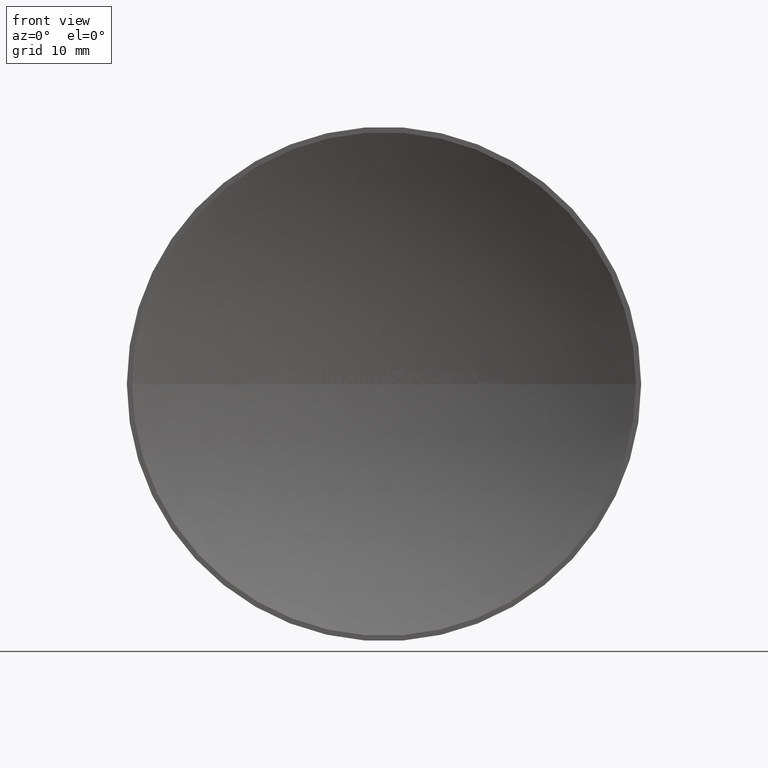
[diagram: clean part render]
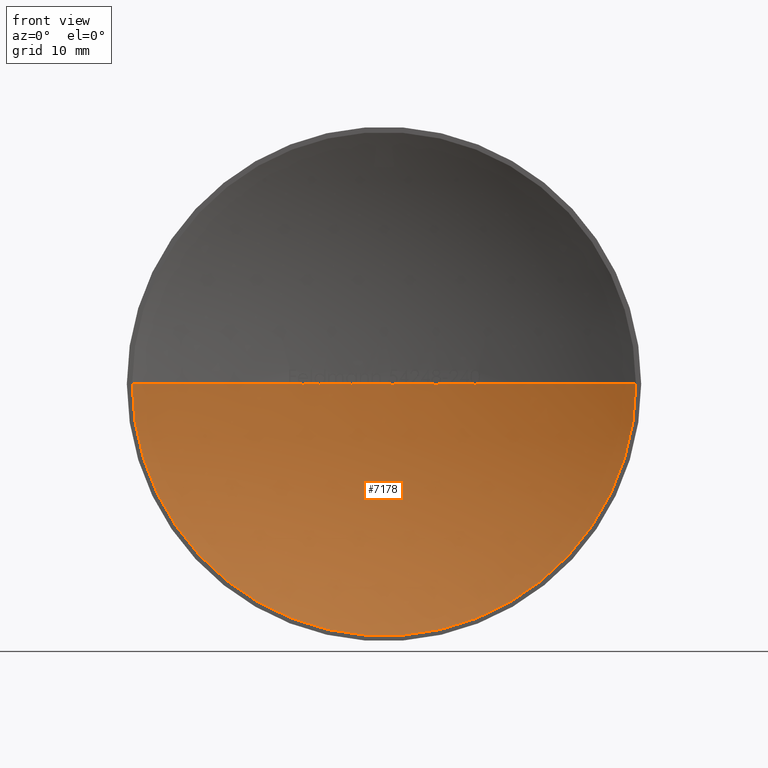
[diagram: same view with one face highlighted and labeled with its STEP entity id]
A machine part, front view. The second image highlights one B-rep face of the part: STEP entity #7178.
In plain terms, the highlighted spherical surface has radius 49.6019 mm.
Its self-contained STEP definition (entity closure, byte-faithful):
#2 = CARTESIAN_POINT ( 'NONE',  ( -5.895910636935421500, 5.648345612933789900, -4.451436351317100900E-006 ) ) ;
#28 = DIRECTION ( 'NONE',  ( -1.224646799147353200E-016, 8.963609366158087900E-031, -1.000000000000000000 ) ) ;
#85 = CARTESIAN_POINT ( 'NONE',  ( 0.8666968587487574600, 5.992427626163703300, -0.03126080758874454800 ) ) ;
#90 = AXIS2_PLACEMENT_3D ( 'NONE', #586, #10655, #7585 ) ;
#96 = CARTESIAN_POINT ( 'NONE',  ( 3.315771901709414500, 5.889050028852087100, 4.040593528228354700E-015 ) ) ;
#101 = ORIENTED_EDGE ( 'NONE', *, *, #2502, .T. ) ;
#114 = DIRECTION ( 'NONE',  ( -1.000000000000000000, 0.0000000000000000000, 1.224646799147353200E-016 ) ) ;
#173 = CARTESIAN_POINT ( 'NONE',  ( 2.026776175213685700, 5.958574774504767500, -1.241042477781546300E-016 ) ) ;
#207 = B_SPLINE_CURVE_WITH_KNOTS ( 'NONE', 3,
 ( #9878, #6851, #12906, #2039, #9017, #9063, #3040, #11046, #4056, #11087 ),
 .UNSPECIFIED., .F., .F.,
 ( 4, 2, 2, 2, 4 ),
 ( 0.7362069321907110900, 0.8681034660953551600, 0.9340517330476776300, 0.9670258665238388200, 1.000000000000000000 ),
 .UNSPECIFIED. ) ;
#226 = CARTESIAN_POINT ( 'NONE',  ( 6.080328525641037100, 5.625918049616797300, -1.798812877977787400E-016 ) ) ;
#262 = CARTESIAN_POINT ( 'NONE',  ( 0.7712336303248004100, 5.993995073771163400, -0.03272302447372480600 ) ) ;
#265 = DIRECTION ( 'NONE',  ( -1.000000000000000000, 0.0000000000000000000, 1.224646799147353200E-016 ) ) ;
#276 = DIRECTION ( 'NONE',  ( 1.000000000000000000, 0.0000000000000000000, 0.0000000000000000000 ) ) ;
#347 = CARTESIAN_POINT ( 'NONE',  ( -6.034217247596139100, 5.631588600145899900, -0.01696047008547008100 ) ) ;
#348 = EDGE_CURVE ( 'NONE', #12517, #11244, #1346, .T. ) ;
#368 = EDGE_CURVE ( 'NONE', #5526, #2754, #5056, .T. ) ;
#427 = CIRCLE ( 'NONE', #6711, 49.60187499999996400 ) ;
#430 = CARTESIAN_POINT ( 'NONE',  ( -6.167833511264245900, 5.615030840146695300, -3.809998868740288200E-006 ) ) ;
#444 = CARTESIAN_POINT ( 'NONE',  ( 4.983198476903437400, 5.749043782948362500, -0.02886242983601915200 ) ) ;
#477 = CIRCLE ( 'NONE', #1980, 49.60187499999996400 ) ;
#527 = EDGE_CURVE ( 'NONE', #1510, #8000, #8569, .T. ) ;
#586 = CARTESIAN_POINT ( 'NONE',  ( 1.463868500272714700E-014, -43.60187499999997800, 0.0000000000000000000 ) ) ;
#588 = CARTESIAN_POINT ( 'NONE',  ( 1.463868500272714700E-014, -43.60187499999997800, 0.0000000000000000000 ) ) ;
#619 = DIRECTION ( 'NONE',  ( 0.0000000000000000000, 0.0000000000000000000, 1.000000000000000000 ) ) ;
#666 = EDGE_CURVE ( 'NONE', #925, #8359, #10414, .T. ) ;
#717 = DIRECTION ( 'NONE',  ( 1.000000000000000000, 0.0000000000000000000, 0.0000000000000000000 ) ) ;
#748 = DIRECTION ( 'NONE',  ( -7.319342501363578300E-015, -1.000000000000000000, -0.0000000000000000000 ) ) ;
#755 = CARTESIAN_POINT ( 'NONE',  ( 1.463868500272714700E-014, -43.60187499999997800, 0.0000000000000000000 ) ) ;
#757 = CARTESIAN_POINT ( 'NONE',  ( 23.64788574058999200, -6.746207689312076300E-015, -2.896030757881546500E-015 ) ) ;
#760 = VERTEX_POINT ( 'NONE', #9757 ) ;
#771 = CIRCLE ( 'NONE', #9816, 49.60187499999996400 ) ;
#832 = EDGE_CURVE ( 'NONE', #7918, #9538, #2568, .T. ) ;
#863 = VERTEX_POINT ( 'NONE', #1512 ) ;
#915 = DIRECTION ( 'NONE',  ( 0.0000000000000000000, -0.0000000000000000000, 1.000000000000000000 ) ) ;
#916 = CIRCLE ( 'NONE', #7531, 49.60187499999996400 ) ;
#925 = VERTEX_POINT ( 'NONE', #7499 ) ;
#966 = EDGE_CURVE ( 'NONE', #4110, #2057, #5974, .T. ) ;
#973 = CARTESIAN_POINT ( 'NONE',  ( -6.894431089743574300, 5.518516116769421700, 4.221621482998457900E-016 ) ) ;
#1010 = EDGE_CURVE ( 'NONE', #4840, #6877, #1979, .T. ) ;
#1021 = DIRECTION ( 'NONE',  ( 1.000000000000000000, 0.0000000000000000000, 0.0000000000000000000 ) ) ;
#1025 = CARTESIAN_POINT ( 'NONE',  ( 1.463868500272714700E-014, -43.60187499999997800, 0.0000000000000000000 ) ) ;
#1049 = CIRCLE ( 'NONE', #3258, 49.60187499999996400 ) ;
#1075 = DIRECTION ( 'NONE',  ( 1.000000000000000000, 0.0000000000000000000, 0.0000000000000000000 ) ) ;
#1077 = CARTESIAN_POINT ( 'NONE',  ( -3.066134982638874600, 5.905139978953395800, -0.01696047008546972000 ) ) ;
#1084 = DIRECTION ( 'NONE',  ( -1.224646799147353200E-016, 8.963609366158087900E-031, -1.000000000000000000 ) ) ;
#1115 = FACE_OUTER_BOUND ( 'NONE', #4856, .T. ) ;
#1124 = CIRCLE ( 'NONE', #6562, 49.60187499999996400 ) ;
#1127 = CARTESIAN_POINT ( 'NONE',  ( 1.463868500272714700E-014, -43.60187499999997800, 0.0000000000000000000 ) ) ;
#1137 = CARTESIAN_POINT ( 'NONE',  ( 0.7432976488490502500, 5.994423324197883900, -0.03002708187931515300 ) ) ;
#1189 = CARTESIAN_POINT ( 'NONE',  ( 1.463868500272714700E-014, -43.60187499999997800, 0.0000000000000000000 ) ) ;
#1245 = CARTESIAN_POINT ( 'NONE',  ( 8.397075306465703500, 5.284064914345841600, 7.094732377005424400E-006 ) ) ;
#1266 = CARTESIAN_POINT ( 'NONE',  ( 1.463868500272714700E-014, -43.60187499999997800, 0.0000000000000000000 ) ) ;
#1269 = AXIS2_PLACEMENT_3D ( 'NONE', #3174, #7117, #7162 ) ;
#1274 = AXIS2_PLACEMENT_3D ( 'NONE', #11185, #9248, #12119 ) ;
#1291 = EDGE_CURVE ( 'NONE', #2902, #2638, #7106, .T. ) ;
#1321 = DIRECTION ( 'NONE',  ( 0.0000000000000000000, 0.0000000000000000000, 1.000000000000000000 ) ) ;
#1328 = DIRECTION ( 'NONE',  ( -1.224646799147353200E-016, 8.963609366158087900E-031, -1.000000000000000000 ) ) ;
#1329 = CIRCLE ( 'NONE', #4303, 49.60187499999996400 ) ;
#1346 = CIRCLE ( 'NONE', #4181, 49.60187499999996400 ) ;
#1354 = VERTEX_POINT ( 'NONE', #6401 ) ;
#1415 = ORIENTED_EDGE ( 'NONE', *, *, #4409, .T. ) ;
#1439 = DIRECTION ( 'NONE',  ( 1.000000000000000000, 0.0000000000000000000, 0.0000000000000000000 ) ) ;
#1470 = CIRCLE ( 'NONE', #7464, 49.60187499999996400 ) ;
#1472 = DIRECTION ( 'NONE',  ( 1.000000000000000000, 0.0000000000000000000, 0.0000000000000000000 ) ) ;
#1474 = DIRECTION ( 'NONE',  ( 0.0000000000000000000, 0.0000000000000000000, -1.000000000000000000 ) ) ;
#1480 = ORIENTED_EDGE ( 'NONE', *, *, #3359, .T. ) ;
#1494 = CARTESIAN_POINT ( 'NONE',  ( -3.199806279697275300, 5.896682869098411200, 3.085091813922783700E-007 ) ) ;
#1510 = VERTEX_POINT ( 'NONE', #1611 ) ;
#1512 = CARTESIAN_POINT ( 'NONE',  ( 3.746545579650276100E-013, 5.999999999999984900, 0.0000000000000000000 ) ) ;
#1529 = AXIS2_PLACEMENT_3D ( 'NONE', #11029, #12095, #1021 ) ;
#1548 = EDGE_CURVE ( 'NONE', #1354, #8000, #7733, .T. ) ;
#1563 = ORIENTED_EDGE ( 'NONE', *, *, #3087, .T. ) ;
#1611 = CARTESIAN_POINT ( 'NONE',  ( 4.899720803285270600, 5.757395547033958400, -0.03392094017094016800 ) ) ;
#1635 = CARTESIAN_POINT ( 'NONE',  ( -6.775707799145285600, 5.535033605815089100, 3.423660335614446600E-015 ) ) ;
#1656 = ORIENTED_EDGE ( 'NONE', *, *, #10271, .F. ) ;
#1678 = DIRECTION ( 'NONE',  ( 0.0000000000000000000, -0.0000000000000000000, 1.000000000000000000 ) ) ;
#1703 = EDGE_CURVE ( 'NONE', #6715, #12932, #1470, .T. ) ;
#1768 = VERTEX_POINT ( 'NONE', #1949 ) ;
#1770 = CARTESIAN_POINT ( 'NONE',  ( 8.397075306465703500, 5.284064914345841600, 7.094732377005424400E-006 ) ) ;
#1774 = ORIENTED_EDGE ( 'NONE', *, *, #9499, .T. ) ;
#1811 = EDGE_CURVE ( 'NONE', #5279, #9349, #4577, .T. ) ;
#1943 = DIRECTION ( 'NONE',  ( -1.000000000000000000, 0.0000000000000000000, 1.224646799147353200E-016 ) ) ;
#1949 = CARTESIAN_POINT ( 'NONE',  ( -23.64788574058970700, 3.398131150768590300E-013, 0.0000000000000000000 ) ) ;
#1979 = B_SPLINE_CURVE_WITH_KNOTS ( 'NONE', 3,
 ( #11604, #6561, #10564, #1770 ),
 .UNSPECIFIED., .F., .F.,
 ( 4, 4 ),
 ( 0.0000000000000000000, 0.1797141219114480900 ),
 .UNSPECIFIED. ) ;
#1980 = AXIS2_PLACEMENT_3D ( 'NONE', #755, #619, #7709 ) ;
#1998 = ORIENTED_EDGE ( 'NONE', *, *, #8922, .F. ) ;
#2000 = AXIS2_PLACEMENT_3D ( 'NONE', #6928, #7907, #7991 ) ;
#2005 = EDGE_CURVE ( 'NONE', #12804, #925, #3103, .T. ) ;
#2007 = DIRECTION ( 'NONE',  ( 0.0000000000000000000, 0.0000000000000000000, 1.000000000000000000 ) ) ;
#2039 = CARTESIAN_POINT ( 'NONE',  ( -7.552298551973626300, 5.421677808603163000, -0.01445594886330721000 ) ) ;
#2057 = VERTEX_POINT ( 'NONE', #3818 ) ;
#2113 = ORIENTED_EDGE ( 'NONE', *, *, #4390, .T. ) ;
#2124 = DIRECTION ( 'NONE',  ( -1.000000000000000000, 0.0000000000000000000, 1.224646799147353200E-016 ) ) ;
#2168 = CARTESIAN_POINT ( 'NONE',  ( 1.463868500272714700E-014, -43.60187499999997800, 0.0000000000000000000 ) ) ;
#2178 = CARTESIAN_POINT ( 'NONE',  ( 0.6620936959369044800, 5.995588419670459900, -0.01235885201735910600 ) ) ;
#2181 = DIRECTION ( 'NONE',  ( 0.0000000000000000000, -0.0000000000000000000, 1.000000000000000000 ) ) ;
#2185 = CARTESIAN_POINT ( 'NONE',  ( -5.249265491452973700, 5.721458375957714900, 0.0000000000000000000 ) ) ;
#2222 = ORIENTED_EDGE ( 'NONE', *, *, #4341, .T. ) ;
#2272 = CARTESIAN_POINT ( 'NONE',  ( -3.007962517037279700, 5.908710727812543700, -0.01425481367256782800 ) ) ;
#2300 = CIRCLE ( 'NONE', #4592, 49.60187499999996400 ) ;
#2310 = VERTEX_POINT ( 'NONE', #3700 ) ;
#2347 = CARTESIAN_POINT ( 'NONE',  ( 1.463868500272714700E-014, -43.60187499999997800, 0.0000000000000000000 ) ) ;
#2385 = DIRECTION ( 'NONE',  ( 1.000000000000000000, 0.0000000000000000000, 0.0000000000000000000 ) ) ;
#2398 = CIRCLE ( 'NONE', #1529, 49.60187499999996400 ) ;
#2457 = CARTESIAN_POINT ( 'NONE',  ( 4.935374490369489400, 5.753844911292551600, -0.03262390615836097800 ) ) ;
#2461 = AXIS2_PLACEMENT_3D ( 'NONE', #4709, #748, #12826 ) ;
#2471 = CIRCLE ( 'NONE', #5989, 49.60187499999996400 ) ;
#2502 = EDGE_CURVE ( 'NONE', #760, #4153, #2398, .T. ) ;
#2551 = ORIENTED_EDGE ( 'NONE', *, *, #2846, .T. ) ;
#2568 = CIRCLE ( 'NONE', #7719, 49.60187499999996400 ) ;
#2569 = DIRECTION ( 'NONE',  ( -1.000000000000000000, 0.0000000000000000000, 1.224646799147353200E-016 ) ) ;
#2590 = ORIENTED_EDGE ( 'NONE', *, *, #12281, .T. ) ;
#2606 = DIRECTION ( 'NONE',  ( -1.000000000000000000, 0.0000000000000000000, 1.224646799147353200E-016 ) ) ;
#2611 = ORIENTED_EDGE ( 'NONE', *, *, #10726, .T. ) ;
#2638 = VERTEX_POINT ( 'NONE', #9406 ) ;
#2709 = CARTESIAN_POINT ( 'NONE',  ( -5.918691338567003700, 5.645618567685453100, -0.005876240359645885600 ) ) ;
#2754 = VERTEX_POINT ( 'NONE', #4420 ) ;
#2783 = DIRECTION ( 'NONE',  ( 0.0000000000000000000, -0.0000000000000000000, 1.000000000000000000 ) ) ;
#2801 = CIRCLE ( 'NONE', #1269, 49.60187499999996400 ) ;
#2817 = AXIS2_PLACEMENT_3D ( 'NONE', #5075, #4171, #6123 ) ;
#2846 = EDGE_CURVE ( 'NONE', #4966, #9755, #5792, .T. ) ;
#2873 = VERTEX_POINT ( 'NONE', #757 ) ;
#2896 = ORIENTED_EDGE ( 'NONE', *, *, #10094, .T. ) ;
#2902 = VERTEX_POINT ( 'NONE', #2933 ) ;
#2921 = ORIENTED_EDGE ( 'NONE', *, *, #9779, .T. ) ;
#2929 = CIRCLE ( 'NONE', #10878, 49.60187499999996400 ) ;
#2932 = CARTESIAN_POINT ( 'NONE',  ( 4.700668238485117300, 5.776761250410414700, -1.033794330066096400E-005 ) ) ;
#2933 = CARTESIAN_POINT ( 'NONE',  ( -0.4324919871794707900, 5.998114457626386700, 2.648249638783373200E-017 ) ) ;
#2979 = CIRCLE ( 'NONE', #3820, 49.60187499999996400 ) ;
#3004 = B_SPLINE_CURVE_WITH_KNOTS ( 'NONE', 3,
 ( #6177, #11093, #262, #1137, #7065, #3135, #2178, #7251 ),
 .UNSPECIFIED., .F., .F.,
 ( 4, 2, 2, 4 ),
 ( 0.0000000000000000000, 0.07062502415171662000, 0.1412500483034332400, 0.2825000966068660400 ),
 .UNSPECIFIED. ) ;
#3011 = VERTEX_POINT ( 'NONE', #8941 ) ;
#3024 = DIRECTION ( 'NONE',  ( 0.0000000000000000000, 0.0000000000000000000, 1.000000000000000000 ) ) ;
#3040 = CARTESIAN_POINT ( 'NONE',  ( -7.585747971044593600, 5.416511367071771100, -0.01628297628625189800 ) ) ;
#3068 = VERTEX_POINT ( 'NONE', #7264 ) ;
#3087 = EDGE_CURVE ( 'NONE', #12558, #4966, #7192, .T. ) ;
#3103 = B_SPLINE_CURVE_WITH_KNOTS ( 'NONE', 3,
 ( #9742, #3644, #5676, #6744 ),
 .UNSPECIFIED., .F., .F.,
 ( 4, 4 ),
 ( 0.0000000000000000000, 0.1813938312137538300 ),
 .UNSPECIFIED. ) ;
#3135 = CARTESIAN_POINT ( 'NONE',  ( 0.6866703100665513300, 5.995251954692352400, -0.01999469001143452900 ) ) ;
#3174 = CARTESIAN_POINT ( 'NONE',  ( 1.463868500272714700E-014, -43.60187499999997800, 0.0000000000000000000 ) ) ;
#3206 = EDGE_CURVE ( 'NONE', #863, #8523, #12903, .T. ) ;
#3229 = DIRECTION ( 'NONE',  ( 0.0000000000000000000, 0.0000000000000000000, 1.000000000000000000 ) ) ;
#3258 = AXIS2_PLACEMENT_3D ( 'NONE', #5951, #2007, #11895 ) ;
#3275 = CARTESIAN_POINT ( 'NONE',  ( -3.016308019238236800, 5.908202592814524800, -0.01493515452262584300 ) ) ;
#3295 = SPHERICAL_SURFACE ( 'NONE', #6748, 49.60187499999996400 ) ;
#3309 = ORIENTED_EDGE ( 'NONE', *, *, #1811, .F. ) ;
#3359 = EDGE_CURVE ( 'NONE', #8071, #3068, #5006, .T. ) ;
#3369 = ORIENTED_EDGE ( 'NONE', *, *, #11891, .T. ) ;
#3376 = CARTESIAN_POINT ( 'NONE',  ( -2.552550747863235000, 5.934278344756257300, 4.044286109048544600E-015 ) ) ;
#3431 = CARTESIAN_POINT ( 'NONE',  ( 1.463868500272714700E-014, -43.60187499999997800, 0.0000000000000000000 ) ) ;
#3451 = CARTESIAN_POINT ( 'NONE',  ( 5.032630656108843000, 5.744039927237764700, -0.02091437475981713900 ) ) ;
#3460 = VERTEX_POINT ( 'NONE', #10781 ) ;
#3500 = DIRECTION ( 'NONE',  ( 1.000000000000000000, 0.0000000000000000000, 0.0000000000000000000 ) ) ;
#3549 = CIRCLE ( 'NONE', #8895, 49.60187499999996400 ) ;
#3644 = CARTESIAN_POINT ( 'NONE',  ( -7.664533653752208400, 5.404282484242230600, -0.01574196231161469100 ) ) ;
#3684 = CARTESIAN_POINT ( 'NONE',  ( -3.159421589964661600, 5.899293637502906600, -0.01013880806420073800 ) ) ;
#3688 = ORIENTED_EDGE ( 'NONE', *, *, #1703, .F. ) ;
#3689 = CARTESIAN_POINT ( 'NONE',  ( 8.719394907836477400, 5.227605148647842100, 1.972222502241140500E-005 ) ) ;
#3700 = CARTESIAN_POINT ( 'NONE',  ( -1.551883012820498100, 5.975717344023155200, 9.502542821511176400E-017 ) ) ;
#3714 = CARTESIAN_POINT ( 'NONE',  ( -5.895910636935421500, 5.648345612933789900, -4.451436351317100900E-006 ) ) ;
#3818 = CARTESIAN_POINT ( 'NONE',  ( 4.062032585470102900, 5.833394745296247100, -2.487277601913873300E-016 ) ) ;
#3820 = AXIS2_PLACEMENT_3D ( 'NONE', #8425, #12368, #2385 ) ;
#3932 = AXIS2_PLACEMENT_3D ( 'NONE', #11664, #6618, #11486 ) ;
#3962 = CIRCLE ( 'NONE', #2461, 23.64788574059004100 ) ;
#4023 = CIRCLE ( 'NONE', #6353, 49.60187499999996400 ) ;
#4056 = CARTESIAN_POINT ( 'NONE',  ( -7.604479323649341500, 5.413609071949524700, -0.01679782546209534300 ) ) ;
#4110 = VERTEX_POINT ( 'NONE', #96 ) ;
#4116 = CARTESIAN_POINT ( 'NONE',  ( 2.145499465811980600, 5.953577127468516700, 2.903022338741282800E-015 ) ) ;
#4146 = CARTESIAN_POINT ( 'NONE',  ( 1.463868500272714700E-014, -43.60187499999997800, 0.0000000000000000000 ) ) ;
#4153 = VERTEX_POINT ( 'NONE', #3376 ) ;
#4158 = ORIENTED_EDGE ( 'NONE', *, *, #6226, .T. ) ;
#4171 = DIRECTION ( 'NONE',  ( 0.0000000000000000000, -0.0000000000000000000, 1.000000000000000000 ) ) ;
#4181 = AXIS2_PLACEMENT_3D ( 'NONE', #4873, #4915, #8982 ) ;
#4300 = VERTEX_POINT ( 'NONE', #6587 ) ;
#4303 = AXIS2_PLACEMENT_3D ( 'NONE', #5661, #10674, #12700 ) ;
#4324 = CARTESIAN_POINT ( 'NONE',  ( -5.130542200854685000, 5.733949106230075400, 4.027930604999430300E-015 ) ) ;
#4334 = CIRCLE ( 'NONE', #4999, 49.60187499999996400 ) ;
#4341 = EDGE_CURVE ( 'NONE', #1768, #2873, #3962, .T. ) ;
#4390 = EDGE_CURVE ( 'NONE', #4300, #5288, #12420, .T. ) ;
#4400 = VERTEX_POINT ( 'NONE', #6635 ) ;
#4409 = EDGE_CURVE ( 'NONE', #9538, #9127, #1329, .T. ) ;
#4414 = CARTESIAN_POINT ( 'NONE',  ( 5.095723898404879800, 5.737557384219008400, 2.607738004724614700E-009 ) ) ;
#4420 = CARTESIAN_POINT ( 'NONE',  ( -4.587807158119638900, 5.787375135991430500, 2.809221675648499300E-016 ) ) ;
#4431 = DIRECTION ( 'NONE',  ( 1.000000000000000000, 0.0000000000000000000, 0.0000000000000000000 ) ) ;
#4436 = DIRECTION ( 'NONE',  ( 1.000000000000000000, 0.0000000000000000000, 0.0000000000000000000 ) ) ;
#4439 = CARTESIAN_POINT ( 'NONE',  ( 4.862164574857991400, 5.761124255854235300, -0.03299780147645102500 ) ) ;
#4445 = ORIENTED_EDGE ( 'NONE', *, *, #368, .T. ) ;
#4476 = DIRECTION ( 'NONE',  ( -1.000000000000000000, 7.274371845886393700E-015, 0.0000000000000000000 ) ) ;
#4516 = CIRCLE ( 'NONE', #11111, 49.60187499999996400 ) ;
#4553 = ORIENTED_EDGE ( 'NONE', *, *, #666, .T. ) ;
#4557 = EDGE_CURVE ( 'NONE', #3011, #8523, #3004, .T. ) ;
#4577 = CIRCLE ( 'NONE', #12582, 49.60187499999996400 ) ;
#4588 = VERTEX_POINT ( 'NONE', #4324 ) ;
#4592 = AXIS2_PLACEMENT_3D ( 'NONE', #2347, #1321, #4436 ) ;
#4638 = ORIENTED_EDGE ( 'NONE', *, *, #11397, .T. ) ;
#4660 = CARTESIAN_POINT ( 'NONE',  ( 1.463868500272714700E-014, -43.60187499999997800, 0.0000000000000000000 ) ) ;
#4667 = CARTESIAN_POINT ( 'NONE',  ( 1.463868500272714700E-014, -43.60187499999997800, 0.0000000000000000000 ) ) ;
#4709 = CARTESIAN_POINT ( 'NONE',  ( -4.391605500818018500E-014, 1.665334536937734800E-013, 0.0000000000000000000 ) ) ;
#4800 = CARTESIAN_POINT ( 'NONE',  ( -3.114841900430167100, 5.902123849646479800, -0.01563823311805393300 ) ) ;
#4816 = ORIENTED_EDGE ( 'NONE', *, *, #10886, .F. ) ;
#4840 = VERTEX_POINT ( 'NONE', #10940 ) ;
#4856 = EDGE_LOOP ( 'NONE', ( #9941, #8240, #6904, #9978, #5576, #2113, #3369, #10689, #7044, #101, #12298, #11709, #1563, #2551, #9246, #8384, #1774, #4445, #12023, #9891, #2896, #6482, #1415, #6366, #1480, #4638, #9478, #5698, #12101, #8641, #4553, #4158, #2590, #2222, #8655, #5367, #8081, #1998, #11829, #1656, #12569, #4816, #9629, #9078, #5770, #11090, #12096, #2921, #3309, #2611, #3688, #11219, #10524 ) ) ;
#4868 = CARTESIAN_POINT ( 'NONE',  ( 1.463868500272714700E-014, -43.60187499999997800, 0.0000000000000000000 ) ) ;
#4873 = CARTESIAN_POINT ( 'NONE',  ( 1.463868500272714700E-014, -43.60187499999997800, 0.0000000000000000000 ) ) ;
#4915 = DIRECTION ( 'NONE',  ( 0.0000000000000000000, -0.0000000000000000000, 1.000000000000000000 ) ) ;
#4966 = VERTEX_POINT ( 'NONE', #1077 ) ;
#4999 = AXIS2_PLACEMENT_3D ( 'NONE', #1266, #9414, #9284 ) ;
#5004 = CARTESIAN_POINT ( 'NONE',  ( 6.979233440170953700, 5.506538781176267600, 4.009364116554751100E-015 ) ) ;
#5006 = B_SPLINE_CURVE_WITH_KNOTS ( 'NONE', 3,
 ( #347, #5308, #5387, #430 ),
 .UNSPECIFIED., .F., .F.,
 ( 4, 4 ),
 ( 0.0000000000000000000, 0.1699215850935141500 ),
 .UNSPECIFIED. ) ;
#5056 = CIRCLE ( 'NONE', #1274, 49.60187499999996400 ) ;
#5075 = CARTESIAN_POINT ( 'NONE',  ( 1.463868500272714700E-014, -43.60187499999997800, 0.0000000000000000000 ) ) ;
#5125 = CIRCLE ( 'NONE', #5814, 49.60187499999996400 ) ;
#5240 = AXIS2_PLACEMENT_3D ( 'NONE', #8046, #915, #7068 ) ;
#5279 = VERTEX_POINT ( 'NONE', #4116 ) ;
#5280 = CARTESIAN_POINT ( 'NONE',  ( -3.066134982638874600, 5.905139978953395800, -0.01696047008546972000 ) ) ;
#5288 = VERTEX_POINT ( 'NONE', #7083 ) ;
#5308 = CARTESIAN_POINT ( 'NONE',  ( -6.083198095802841500, 5.625585802342218500, -0.01563079678379045900 ) ) ;
#5367 = ORIENTED_EDGE ( 'NONE', *, *, #11137, .T. ) ;
#5387 = CARTESIAN_POINT ( 'NONE',  ( -6.127747067491331900, 5.620054578966741800, -0.01005751227274347600 ) ) ;
#5388 = DIRECTION ( 'NONE',  ( 0.0000000000000000000, -0.0000000000000000000, 1.000000000000000000 ) ) ;
#5395 = B_SPLINE_CURVE_WITH_KNOTS ( 'NONE', 3,
 ( #9936, #6051, #8050, #85, #10105, #10919 ),
 .UNSPECIFIED., .F., .F.,
 ( 4, 2, 4 ),
 ( 0.7374058859705057100, 0.8687029429852528600, 1.000000000000000000 ),
 .UNSPECIFIED. ) ;
#5526 = VERTEX_POINT ( 'NONE', #9527 ) ;
#5576 = ORIENTED_EDGE ( 'NONE', *, *, #9551, .T. ) ;
#5661 = CARTESIAN_POINT ( 'NONE',  ( 1.463868500272714700E-014, -43.60187499999997800, 0.0000000000000000000 ) ) ;
#5676 = CARTESIAN_POINT ( 'NONE',  ( -7.711168198902466700, 5.396957799996431300, -0.01015555371944080500 ) ) ;
#5698 = ORIENTED_EDGE ( 'NONE', *, *, #348, .T. ) ;
#5770 = ORIENTED_EDGE ( 'NONE', *, *, #1548, .F. ) ;
#5792 = B_SPLINE_CURVE_WITH_KNOTS ( 'NONE', 3,
 ( #12708, #4800, #3684, #10644 ),
 .UNSPECIFIED., .F., .F.,
 ( 4, 4 ),
 ( 0.0000000000000000000, 0.1700437791470981500 ),
 .UNSPECIFIED. ) ;
#5814 = AXIS2_PLACEMENT_3D ( 'NONE', #7483, #11382, #9560 ) ;
#5839 = AXIS2_PLACEMENT_3D ( 'NONE', #4660, #8577, #2569 ) ;
#5951 = CARTESIAN_POINT ( 'NONE',  ( 1.463868500272714700E-014, -43.60187499999997800, 0.0000000000000000000 ) ) ;
#5974 = CIRCLE ( 'NONE', #90, 49.60187499999996400 ) ;
#5989 = AXIS2_PLACEMENT_3D ( 'NONE', #6400, #1328, #265 ) ;
#6010 = CARTESIAN_POINT ( 'NONE',  ( 1.463868500272714700E-014, -43.60187499999997800, 0.0000000000000000000 ) ) ;
#6051 = CARTESIAN_POINT ( 'NONE',  ( 0.9605260150822342300, 5.990707589237374900, -0.01174390968605125100 ) ) ;
#6053 = CARTESIAN_POINT ( 'NONE',  ( -6.034217247596139100, 5.631588600145899900, -0.01696047008547008100 ) ) ;
#6123 = DIRECTION ( 'NONE',  ( 1.000000000000000000, 0.0000000000000000000, 0.0000000000000000000 ) ) ;
#6177 = CARTESIAN_POINT ( 'NONE',  ( 0.8021772335737323800, 5.993501443488938200, -0.03392094017094026600 ) ) ;
#6226 = EDGE_CURVE ( 'NONE', #8359, #3460, #9437, .T. ) ;
#6242 = DIRECTION ( 'NONE',  ( 0.0000000000000000000, 0.0000000000000000000, 1.000000000000000000 ) ) ;
#6320 = EDGE_CURVE ( 'NONE', #8850, #2902, #1124, .T. ) ;
#6324 = CARTESIAN_POINT ( 'NONE',  ( -2.973120658539959700, 5.910820385207927100, -0.01009719056955850000 ) ) ;
#6353 = AXIS2_PLACEMENT_3D ( 'NONE', #588, #8608, #1472 ) ;
#6361 = CARTESIAN_POINT ( 'NONE',  ( 4.832708314424846400, 5.764016424894649000, -0.03103072136598424700 ) ) ;
#6366 = ORIENTED_EDGE ( 'NONE', *, *, #6471, .T. ) ;
#6369 = CARTESIAN_POINT ( 'NONE',  ( 1.463868500272714700E-014, -43.60187499999997800, 0.0000000000000000000 ) ) ;
#6400 = CARTESIAN_POINT ( 'NONE',  ( 1.463868500272714700E-014, -43.60187499999997800, 0.0000000000000000000 ) ) ;
#6401 = CARTESIAN_POINT ( 'NONE',  ( 4.180755876068392500, 5.823495851621774300, 2.770433645423313900E-015 ) ) ;
#6420 = DIRECTION ( 'NONE',  ( 0.0000000000000000000, 0.0000000000000000000, 1.000000000000000000 ) ) ;
#6471 = EDGE_CURVE ( 'NONE', #9127, #8071, #7669, .T. ) ;
#6482 = ORIENTED_EDGE ( 'NONE', *, *, #832, .T. ) ;
#6561 = CARTESIAN_POINT ( 'NONE',  ( 8.498456241192837300, 5.266568832888620700, -0.03291209944182921200 ) ) ;
#6562 = AXIS2_PLACEMENT_3D ( 'NONE', #6369, #6242, #276 ) ;
#6566 = EDGE_CURVE ( 'NONE', #4153, #8324, #11441, .T. ) ;
#6587 = CARTESIAN_POINT ( 'NONE',  ( -1.161792200854687500, 5.986392184865983300, 0.0000000000000000000 ) ) ;
#6618 = DIRECTION ( 'NONE',  ( 0.0000000000000000000, -0.0000000000000000000, 1.000000000000000000 ) ) ;
#6635 = CARTESIAN_POINT ( 'NONE',  ( -2.162459935897421500, 5.952839917364443100, 4.045801533747328400E-015 ) ) ;
#6680 = CARTESIAN_POINT ( 'NONE',  ( -6.005967698113527000, 5.635044210760963100, -0.01613134365506572000 ) ) ;
#6711 = AXIS2_PLACEMENT_3D ( 'NONE', #7981, #11871, #12886 ) ;
#6715 = VERTEX_POINT ( 'NONE', #11637 ) ;
#6722 = CARTESIAN_POINT ( 'NONE',  ( -6.018974293600415100, 5.633456949071432800, -0.01660712419970389700 ) ) ;
#6740 = CARTESIAN_POINT ( 'NONE',  ( 8.617739958290256300, 5.245675222398904900, -0.03305174896584775500 ) ) ;
#6744 = CARTESIAN_POINT ( 'NONE',  ( -7.752216825117827200, 5.390462211862153900, 2.745897697194159300E-006 ) ) ;
#6748 = AXIS2_PLACEMENT_3D ( 'NONE', #9454, #1474, #4476 ) ;
#6799 = VERTEX_POINT ( 'NONE', #5004 ) ;
#6839 = VERTEX_POINT ( 'NONE', #2185 ) ;
#6851 = CARTESIAN_POINT ( 'NONE',  ( -7.493129320989350400, 5.430762834848982500, -0.006081822718346588600 ) ) ;
#6877 = VERTEX_POINT ( 'NONE', #1245 ) ;
#6904 = ORIENTED_EDGE ( 'NONE', *, *, #6320, .T. ) ;
#6926 = DIRECTION ( 'NONE',  ( -1.224646799147353200E-016, 8.963609366158087900E-031, -1.000000000000000000 ) ) ;
#6928 = CARTESIAN_POINT ( 'NONE',  ( 1.463868500272714700E-014, -43.60187499999997800, 0.0000000000000000000 ) ) ;
#6990 = VERTEX_POINT ( 'NONE', #8928 ) ;
#7043 = DIRECTION ( 'NONE',  ( 1.000000000000000000, 0.0000000000000000000, 0.0000000000000000000 ) ) ;
#7044 = ORIENTED_EDGE ( 'NONE', *, *, #11040, .T. ) ;
#7065 = CARTESIAN_POINT ( 'NONE',  ( 0.7312333396023856800, 5.994603914410022900, -0.02844728124040855900 ) ) ;
#7068 = DIRECTION ( 'NONE',  ( 1.000000000000000000, 0.0000000000000000000, 0.0000000000000000000 ) ) ;
#7083 = CARTESIAN_POINT ( 'NONE',  ( -1.433159722222207900, 5.979291351006943400, 4.047961111316871700E-015 ) ) ;
#7106 = CIRCLE ( 'NONE', #8813, 49.60187499999996400 ) ;
#7117 = DIRECTION ( 'NONE',  ( 0.0000000000000000000, -0.0000000000000000000, 1.000000000000000000 ) ) ;
#7162 = DIRECTION ( 'NONE',  ( 1.000000000000000000, 0.0000000000000000000, 0.0000000000000000000 ) ) ;
#7178 = ADVANCED_FACE ( 'NONE', ( #1115 ), #3295, .F. ) ;
#7192 = B_SPLINE_CURVE_WITH_KNOTS ( 'NONE', 3,
 ( #10336, #10588, #6324, #2272, #3275, #11283, #10289, #5280 ),
 .UNSPECIFIED., .F., .F.,
 ( 4, 2, 2, 4 ),
 ( 0.6915283793037685400, 0.8457641896518842700, 0.9228820948259421900, 1.000000000000000000 ),
 .UNSPECIFIED. ) ;
#7251 = CARTESIAN_POINT ( 'NONE',  ( 0.6348561572601799700, 5.995936957844795000, 8.349247064518026800E-006 ) ) ;
#7254 = CARTESIAN_POINT ( 'NONE',  ( 4.732039572759418900, 5.773774847040240100, -0.01252330541572971000 ) ) ;
#7264 = CARTESIAN_POINT ( 'NONE',  ( -6.167833511264245900, 5.615030840146695300, -3.809998868740288200E-006 ) ) ;
#7299 = CARTESIAN_POINT ( 'NONE',  ( 4.700668238485117300, 5.776761250410414700, -1.033794330066096400E-005 ) ) ;
#7352 = AXIS2_PLACEMENT_3D ( 'NONE', #9043, #3024, #12052 ) ;
#7388 = CARTESIAN_POINT ( 'NONE',  ( 4.762732078001379300, 5.770822363054341200, -0.02017379215881640000 ) ) ;
#7392 = AXIS2_PLACEMENT_3D ( 'NONE', #4146, #3229, #9162 ) ;
#7432 = CARTESIAN_POINT ( 'NONE',  ( 1.463868500272714700E-014, -43.60187499999997800, 0.0000000000000000000 ) ) ;
#7442 = CARTESIAN_POINT ( 'NONE',  ( 4.967995999874971400, 5.750576029041981800, -0.03047550743908710600 ) ) ;
#7464 = AXIS2_PLACEMENT_3D ( 'NONE', #1127, #1084, #12105 ) ;
#7483 = CARTESIAN_POINT ( 'NONE',  ( 1.463868500272714700E-014, -43.60187499999997800, 0.0000000000000000000 ) ) ;
#7499 = CARTESIAN_POINT ( 'NONE',  ( -7.752216825117827200, 5.390462211862153900, 2.745897697194159300E-006 ) ) ;
#7531 = AXIS2_PLACEMENT_3D ( 'NONE', #1025, #11168, #1075 ) ;
#7585 = DIRECTION ( 'NONE',  ( -1.000000000000000000, 0.0000000000000000000, 1.224646799147353200E-016 ) ) ;
#7602 = EDGE_CURVE ( 'NONE', #11568, #11375, #2979, .T. ) ;
#7615 = CIRCLE ( 'NONE', #7392, 49.60187499999996400 ) ;
#7669 = B_SPLINE_CURVE_WITH_KNOTS ( 'NONE', 3,
 ( #3714, #2709, #10711, #11717, #12735, #6680, #6722, #7694 ),
 .UNSPECIFIED., .F., .F.,
 ( 4, 2, 2, 4 ),
 ( 0.6911621361652694500, 0.8455810680826347800, 0.9227905340413173900, 1.000000000000000000 ),
 .UNSPECIFIED. ) ;
#7694 = CARTESIAN_POINT ( 'NONE',  ( -6.034217247596139100, 5.631588600145899900, -0.01696047008547008100 ) ) ;
#7706 = EDGE_CURVE ( 'NONE', #1354, #2057, #11589, .T. ) ;
#7709 = DIRECTION ( 'NONE',  ( 1.000000000000000000, 0.0000000000000000000, 0.0000000000000000000 ) ) ;
#7719 = AXIS2_PLACEMENT_3D ( 'NONE', #3431, #10439, #4431 ) ;
#7733 = CIRCLE ( 'NONE', #5839, 49.60187499999996400 ) ;
#7862 = AXIS2_PLACEMENT_3D ( 'NONE', #7884, #9946, #10926 ) ;
#7884 = CARTESIAN_POINT ( 'NONE',  ( 1.463868500272714700E-014, -43.60187499999997800, 0.0000000000000000000 ) ) ;
#7907 = DIRECTION ( 'NONE',  ( 0.0000000000000000000, 0.0000000000000000000, 1.000000000000000000 ) ) ;
#7917 = EDGE_CURVE ( 'NONE', #6799, #8140, #477, .T. ) ;
#7918 = VERTEX_POINT ( 'NONE', #10725 ) ;
#7921 = CARTESIAN_POINT ( 'NONE',  ( -2.671274038461525000, 5.928017979160219200, 1.635683600423895800E-016 ) ) ;
#7981 = CARTESIAN_POINT ( 'NONE',  ( 1.463868500272714700E-014, -43.60187499999997800, 0.0000000000000000000 ) ) ;
#7987 = CIRCLE ( 'NONE', #5240, 49.60187499999996400 ) ;
#7991 = DIRECTION ( 'NONE',  ( 1.000000000000000000, 0.0000000000000000000, 0.0000000000000000000 ) ) ;
#8000 = VERTEX_POINT ( 'NONE', #2932 ) ;
#8046 = CARTESIAN_POINT ( 'NONE',  ( 1.463868500272714700E-014, -43.60187499999997800, 0.0000000000000000000 ) ) ;
#8050 = CARTESIAN_POINT ( 'NONE',  ( 0.9287033194531672000, 5.991310833542732100, -0.02055924846159639500 ) ) ;
#8071 = VERTEX_POINT ( 'NONE', #6053 ) ;
#8081 = ORIENTED_EDGE ( 'NONE', *, *, #1010, .T. ) ;
#8084 = AXIS2_PLACEMENT_3D ( 'NONE', #4667, #11678, #11723 ) ;
#8104 = VERTEX_POINT ( 'NONE', #10107 ) ;
#8140 = VERTEX_POINT ( 'NONE', #226 ) ;
#8238 = CARTESIAN_POINT ( 'NONE',  ( 1.463868500272714700E-014, -43.60187499999997800, 0.0000000000000000000 ) ) ;
#8240 = ORIENTED_EDGE ( 'NONE', *, *, #12468, .T. ) ;
#8244 = CARTESIAN_POINT ( 'NONE',  ( 2.416866987179502300, 5.941083707387528900, 1.579703397677718900E-016 ) ) ;
#8273 = CIRCLE ( 'NONE', #2000, 49.60187499999996400 ) ;
#8324 = VERTEX_POINT ( 'NONE', #7921 ) ;
#8359 = VERTEX_POINT ( 'NONE', #10760 ) ;
#8384 = ORIENTED_EDGE ( 'NONE', *, *, #7602, .T. ) ;
#8400 = EDGE_CURVE ( 'NONE', #8324, #12558, #7987, .T. ) ;
#8421 = CARTESIAN_POINT ( 'NONE',  ( -3.926348824786306800, 5.844356286334881500, 2.404195260305488100E-016 ) ) ;
#8425 = CARTESIAN_POINT ( 'NONE',  ( 1.463868500272714700E-014, -43.60187499999997800, 0.0000000000000000000 ) ) ;
#8449 = CARTESIAN_POINT ( 'NONE',  ( 4.940862395711684800, 5.753296143431540200, -0.03235308750976905600 ) ) ;
#8509 = CARTESIAN_POINT ( 'NONE',  ( 1.463868500272714700E-014, -43.60187499999997800, 0.0000000000000000000 ) ) ;
#8523 = VERTEX_POINT ( 'NONE', #9679 ) ;
#8526 = CARTESIAN_POINT ( 'NONE',  ( 7.725494123931643900, 5.394683491966777200, -4.730500825352062200E-016 ) ) ;
#8569 = B_SPLINE_CURVE_WITH_KNOTS ( 'NONE', 3,
 ( #12419, #4439, #6361, #7388, #7254, #7299 ),
 .UNSPECIFIED., .F., .F.,
 ( 4, 2, 4 ),
 ( 0.0000000000000000000, 0.1491932665162704300, 0.2983865330325408700 ),
 .UNSPECIFIED. ) ;
#8572 = CARTESIAN_POINT ( 'NONE',  ( -3.807625534188018500, 5.853640276933698600, 4.037702565605322600E-015 ) ) ;
#8577 = DIRECTION ( 'NONE',  ( -1.224646799147353200E-016, 8.963609366158087900E-031, -1.000000000000000000 ) ) ;
#8599 = CIRCLE ( 'NONE', #10951, 49.60187499999996400 ) ;
#8600 = CARTESIAN_POINT ( 'NONE',  ( 8.557882194845104700, 5.256159193207106600, -0.03392094017093987000 ) ) ;
#8601 = CARTESIAN_POINT ( 'NONE',  ( -5.639356303418787200, 5.678381330489132000, 3.453109823116861900E-016 ) ) ;
#8608 = DIRECTION ( 'NONE',  ( 0.0000000000000000000, -0.0000000000000000000, 1.000000000000000000 ) ) ;
#8641 = ORIENTED_EDGE ( 'NONE', *, *, #2005, .T. ) ;
#8655 = ORIENTED_EDGE ( 'NONE', *, *, #11538, .F. ) ;
#8737 = EDGE_CURVE ( 'NONE', #6715, #3011, #5395, .T. ) ;
#8809 = CARTESIAN_POINT ( 'NONE',  ( -7.469806984815853000, 5.434315410384929400, -2.668615665241029700E-007 ) ) ;
#8813 = AXIS2_PLACEMENT_3D ( 'NONE', #1189, #2181, #12204 ) ;
#8831 = CARTESIAN_POINT ( 'NONE',  ( -0.3137686965811805600, 5.999007580057676300, 3.056390895824627300E-015 ) ) ;
#8850 = VERTEX_POINT ( 'NONE', #8831 ) ;
#8895 = AXIS2_PLACEMENT_3D ( 'NONE', #7432, #2783, #9801 ) ;
#8916 = EDGE_CURVE ( 'NONE', #2754, #4588, #9559, .T. ) ;
#8922 = EDGE_CURVE ( 'NONE', #9410, #6877, #4516, .T. ) ;
#8928 = CARTESIAN_POINT ( 'NONE',  ( 8.719394907836477400, 5.227605148647842100, 1.972222502241140500E-005 ) ) ;
#8941 = CARTESIAN_POINT ( 'NONE',  ( 0.8021772335737323800, 5.993501443488938200, -0.03392094017094026600 ) ) ;
#8982 = DIRECTION ( 'NONE',  ( 1.000000000000000000, 0.0000000000000000000, 0.0000000000000000000 ) ) ;
#9017 = CARTESIAN_POINT ( 'NONE',  ( -7.563318559780955600, 5.419978792450902600, -0.01528959969020865000 ) ) ;
#9021 = EDGE_CURVE ( 'NONE', #8104, #1510, #11584, .T. ) ;
#9043 = CARTESIAN_POINT ( 'NONE',  ( 1.463868500272714700E-014, -43.60187499999997800, 0.0000000000000000000 ) ) ;
#9063 = CARTESIAN_POINT ( 'NONE',  ( -7.582463028399215200, 5.417019701724054700, -0.01618472182072551400 ) ) ;
#9078 = ORIENTED_EDGE ( 'NONE', *, *, #527, .T. ) ;
#9121 = DIRECTION ( 'NONE',  ( 0.0000000000000000000, 0.0000000000000000000, 1.000000000000000000 ) ) ;
#9127 = VERTEX_POINT ( 'NONE', #2 ) ;
#9162 = DIRECTION ( 'NONE',  ( 1.000000000000000000, 0.0000000000000000000, 0.0000000000000000000 ) ) ;
#9240 = CIRCLE ( 'NONE', #7862, 49.60187499999996400 ) ;
#9246 = ORIENTED_EDGE ( 'NONE', *, *, #12113, .T. ) ;
#9248 = DIRECTION ( 'NONE',  ( 0.0000000000000000000, 0.0000000000000000000, 1.000000000000000000 ) ) ;
#9284 = DIRECTION ( 'NONE',  ( 1.000000000000000000, 0.0000000000000000000, 0.0000000000000000000 ) ) ;
#9349 = VERTEX_POINT ( 'NONE', #8244 ) ;
#9406 = CARTESIAN_POINT ( 'NONE',  ( -1.043068910256396600, 5.989031532993322100, 3.100436797734094600E-015 ) ) ;
#9410 = VERTEX_POINT ( 'NONE', #11304 ) ;
#9414 = DIRECTION ( 'NONE',  ( 0.0000000000000000000, -0.0000000000000000000, 1.000000000000000000 ) ) ;
#9437 = CIRCLE ( 'NONE', #11849, 49.60187499999996400 ) ;
#9454 = CARTESIAN_POINT ( 'NONE',  ( 1.463868500272714700E-014, -43.60187499999997800, 0.0000000000000000000 ) ) ;
#9472 = CARTESIAN_POINT ( 'NONE',  ( 4.918724700332232300, 5.755506502300693100, -0.03334966401732138800 ) ) ;
#9478 = ORIENTED_EDGE ( 'NONE', *, *, #12894, .T. ) ;
#9499 = EDGE_CURVE ( 'NONE', #11375, #5526, #12044, .T. ) ;
#9527 = CARTESIAN_POINT ( 'NONE',  ( -4.469083867521351100, 5.798259543345972500, 4.033181109730479700E-015 ) ) ;
#9538 = VERTEX_POINT ( 'NONE', #8601 ) ;
#9551 = EDGE_CURVE ( 'NONE', #2638, #4300, #9240, .T. ) ;
#9559 = CIRCLE ( 'NONE', #2817, 49.60187499999996400 ) ;
#9560 = DIRECTION ( 'NONE',  ( 1.000000000000000000, 0.0000000000000000000, 0.0000000000000000000 ) ) ;
#9625 = CARTESIAN_POINT ( 'NONE',  ( 1.463868500272714700E-014, -43.60187499999997800, 0.0000000000000000000 ) ) ;
#9629 = ORIENTED_EDGE ( 'NONE', *, *, #9021, .T. ) ;
#9679 = CARTESIAN_POINT ( 'NONE',  ( 0.6348561572601799700, 5.995936957844795000, 8.349247064518026800E-006 ) ) ;
#9742 = CARTESIAN_POINT ( 'NONE',  ( -7.612335987580113500, 5.412388808306564800, -0.01696047008547008400 ) ) ;
#9755 = VERTEX_POINT ( 'NONE', #1494 ) ;
#9757 = CARTESIAN_POINT ( 'NONE',  ( -2.281183226495711900, 5.947516586605562600, 0.0000000000000000000 ) ) ;
#9779 = EDGE_CURVE ( 'NONE', #4110, #9349, #5125, .T. ) ;
#9801 = DIRECTION ( 'NONE',  ( 1.000000000000000000, 0.0000000000000000000, 0.0000000000000000000 ) ) ;
#9816 = AXIS2_PLACEMENT_3D ( 'NONE', #10449, #5388, #1439 ) ;
#9878 = CARTESIAN_POINT ( 'NONE',  ( -7.469806984815853000, 5.434315410384929400, -2.668615665241029700E-007 ) ) ;
#9891 = ORIENTED_EDGE ( 'NONE', *, *, #11707, .T. ) ;
#9926 = DIRECTION ( 'NONE',  ( -1.224646799147353200E-016, 8.963609366158087900E-031, -1.000000000000000000 ) ) ;
#9936 = CARTESIAN_POINT ( 'NONE',  ( 0.9897537738172025300, 5.990124192686824500, -9.324699052487155100E-007 ) ) ;
#9941 = ORIENTED_EDGE ( 'NONE', *, *, #3206, .F. ) ;
#9946 = DIRECTION ( 'NONE',  ( 0.0000000000000000000, 0.0000000000000000000, 1.000000000000000000 ) ) ;
#9978 = ORIENTED_EDGE ( 'NONE', *, *, #1291, .T. ) ;
#10094 = EDGE_CURVE ( 'NONE', #6839, #7918, #771, .T. ) ;
#10105 = CARTESIAN_POINT ( 'NONE',  ( 0.8354501989586725600, 5.992963478357987500, -0.03361929339336764500 ) ) ;
#10107 = CARTESIAN_POINT ( 'NONE',  ( 5.095723898404879800, 5.737557384219008400, 2.607738004724614700E-009 ) ) ;
#10110 = DIRECTION ( 'NONE',  ( 1.000000000000000000, 0.0000000000000000000, 0.0000000000000000000 ) ) ;
#10162 = DIRECTION ( 'NONE',  ( 0.0000000000000000000, 0.0000000000000000000, 1.000000000000000000 ) ) ;
#10164 = AXIS2_PLACEMENT_3D ( 'NONE', #4868, #9926, #10912 ) ;
#10182 = VERTEX_POINT ( 'NONE', #8526 ) ;
#10271 = EDGE_CURVE ( 'NONE', #6799, #10182, #8599, .T. ) ;
#10289 = CARTESIAN_POINT ( 'NONE',  ( -3.050872692272489100, 5.906085344836230700, -0.01660667596460331200 ) ) ;
#10312 = EDGE_CURVE ( 'NONE', #9410, #10182, #916, .T. ) ;
#10336 = CARTESIAN_POINT ( 'NONE',  ( -2.927818398898079300, 5.913515254957305300, -3.516997286217567700E-006 ) ) ;
#10414 = CIRCLE ( 'NONE', #3932, 49.60187499999996400 ) ;
#10439 = DIRECTION ( 'NONE',  ( 0.0000000000000000000, 0.0000000000000000000, 1.000000000000000000 ) ) ;
#10449 = CARTESIAN_POINT ( 'NONE',  ( 1.463868500272714700E-014, -43.60187499999997800, 0.0000000000000000000 ) ) ;
#10524 = ORIENTED_EDGE ( 'NONE', *, *, #4557, .T. ) ;
#10564 = CARTESIAN_POINT ( 'NONE',  ( 8.446863971576940200, 5.275512869362659200, -0.02266787083149618800 ) ) ;
#10588 = CARTESIAN_POINT ( 'NONE',  ( -2.950483703789294100, 5.912175176692461100, -0.005847630219746059400 ) ) ;
#10644 = CARTESIAN_POINT ( 'NONE',  ( -3.199806279697275300, 5.896682869098411200, 3.085091813922783700E-007 ) ) ;
#10655 = DIRECTION ( 'NONE',  ( -1.224646799147353200E-016, 8.963609366158087900E-031, -1.000000000000000000 ) ) ;
#10674 = DIRECTION ( 'NONE',  ( 0.0000000000000000000, -0.0000000000000000000, 1.000000000000000000 ) ) ;
#10684 = CARTESIAN_POINT ( 'NONE',  ( 1.463868500272714700E-014, -43.60187499999997800, 0.0000000000000000000 ) ) ;
#10689 = ORIENTED_EDGE ( 'NONE', *, *, #12203, .T. ) ;
#10711 = CARTESIAN_POINT ( 'NONE',  ( -5.941315075110384000, 5.642893543946824400, -0.01011078475972755600 ) ) ;
#10725 = CARTESIAN_POINT ( 'NONE',  ( -5.520633012820497700, 5.691822514523901900, 4.024491258619965800E-015 ) ) ;
#10726 = EDGE_CURVE ( 'NONE', #5279, #12932, #8273, .T. ) ;
#10760 = CARTESIAN_POINT ( 'NONE',  ( -8.794003739316227800, 5.214223796898092900, 4.066078810028501000E-015 ) ) ;
#10781 = CARTESIAN_POINT ( 'NONE',  ( -8.912727029914517400, 5.192687201190558700, 1.091494262885935900E-015 ) ) ;
#10858 = B_SPLINE_CURVE_WITH_KNOTS ( 'NONE', 3,
 ( #3689, #12754, #6740, #8600 ),
 .UNSPECIFIED., .F., .F.,
 ( 4, 4 ),
 ( 0.8196789441939101900, 1.000000000000000000 ),
 .UNSPECIFIED. ) ;
#10878 = AXIS2_PLACEMENT_3D ( 'NONE', #9625, #12638, #2606 ) ;
#10886 = EDGE_CURVE ( 'NONE', #8104, #8140, #2471, .T. ) ;
#10912 = DIRECTION ( 'NONE',  ( -1.000000000000000000, 0.0000000000000000000, 1.224646799147353200E-016 ) ) ;
#10919 = CARTESIAN_POINT ( 'NONE',  ( 0.8021772335737323800, 5.993501443488938200, -0.03392094017094026600 ) ) ;
#10926 = DIRECTION ( 'NONE',  ( 1.000000000000000000, 0.0000000000000000000, 0.0000000000000000000 ) ) ;
#10932 = AXIS2_PLACEMENT_3D ( 'NONE', #8238, #10162, #7043 ) ;
#10940 = CARTESIAN_POINT ( 'NONE',  ( 8.557882194845104700, 5.256159193207106600, -0.03392094017093987000 ) ) ;
#10951 = AXIS2_PLACEMENT_3D ( 'NONE', #12936, #6926, #1943 ) ;
#10985 = CARTESIAN_POINT ( 'NONE',  ( -2.927818398898079300, 5.913515254957305300, -3.516997286217567700E-006 ) ) ;
#11029 = CARTESIAN_POINT ( 'NONE',  ( 1.463868500272714700E-014, -43.60187499999997800, 0.0000000000000000000 ) ) ;
#11040 = EDGE_CURVE ( 'NONE', #4400, #760, #12817, .T. ) ;
#11046 = CARTESIAN_POINT ( 'NONE',  ( -7.597590311812545000, 5.414677146690877400, -0.01662984177929073200 ) ) ;
#11087 = CARTESIAN_POINT ( 'NONE',  ( -7.612335987580113500, 5.412388808306564800, -0.01696047008547008400 ) ) ;
#11090 = ORIENTED_EDGE ( 'NONE', *, *, #7706, .T. ) ;
#11093 = CARTESIAN_POINT ( 'NONE',  ( 0.7862023598933148800, 5.993760045104497000, -0.03360359941227208900 ) ) ;
#11111 = AXIS2_PLACEMENT_3D ( 'NONE', #2168, #12192, #114 ) ;
#11137 = EDGE_CURVE ( 'NONE', #6990, #4840, #10858, .T. ) ;
#11168 = DIRECTION ( 'NONE',  ( 0.0000000000000000000, 0.0000000000000000000, 1.000000000000000000 ) ) ;
#11178 = VERTEX_POINT ( 'NONE', #1635 ) ;
#11185 = CARTESIAN_POINT ( 'NONE',  ( 1.463868500272714700E-014, -43.60187499999997800, 0.0000000000000000000 ) ) ;
#11219 = ORIENTED_EDGE ( 'NONE', *, *, #8737, .T. ) ;
#11241 = CARTESIAN_POINT ( 'NONE',  ( 4.909615135926294700, 5.756413550157618400, -0.03366098335286819800 ) ) ;
#11244 = VERTEX_POINT ( 'NONE', #8809 ) ;
#11283 = CARTESIAN_POINT ( 'NONE',  ( -3.037854780296572100, 5.906884816176444500, -0.01612979411444533500 ) ) ;
#11304 = CARTESIAN_POINT ( 'NONE',  ( 7.844217414529935300, 5.375816418330542100, 2.518698863828286600E-015 ) ) ;
#11375 = VERTEX_POINT ( 'NONE', #8421 ) ;
#11382 = DIRECTION ( 'NONE',  ( 0.0000000000000000000, 0.0000000000000000000, 1.000000000000000000 ) ) ;
#11392 = AXIS2_PLACEMENT_3D ( 'NONE', #8509, #6420, #3500 ) ;
#11397 = EDGE_CURVE ( 'NONE', #3068, #11178, #2801, .T. ) ;
#11413 = CARTESIAN_POINT ( 'NONE',  ( 5.063327934480726700, 5.740903341288241500, -0.01278845292095422700 ) ) ;
#11441 = CIRCLE ( 'NONE', #10932, 49.60187499999996400 ) ;
#11486 = DIRECTION ( 'NONE',  ( 1.000000000000000000, 0.0000000000000000000, 0.0000000000000000000 ) ) ;
#11538 = EDGE_CURVE ( 'NONE', #6990, #2873, #2929, .T. ) ;
#11568 = VERTEX_POINT ( 'NONE', #8572 ) ;
#11584 = B_SPLINE_CURVE_WITH_KNOTS ( 'NONE', 3,
 ( #4414, #11413, #3451, #444, #7442, #8449, #2457, #9472, #11241, #12258 ),
 .UNSPECIFIED., .F., .F.,
 ( 4, 2, 2, 2, 4 ),
 ( 0.4911813936458864200, 0.7455906968229437700, 0.8727953484114721000, 0.9363976742057360500, 1.000000000000000000 ),
 .UNSPECIFIED. ) ;
#11589 = CIRCLE ( 'NONE', #7352, 49.60187499999996400 ) ;
#11604 = CARTESIAN_POINT ( 'NONE',  ( 8.557882194845104700, 5.256159193207106600, -0.03392094017093987000 ) ) ;
#11637 = CARTESIAN_POINT ( 'NONE',  ( 0.9897537738172025300, 5.990124192686824500, -9.324699052487155100E-007 ) ) ;
#11664 = CARTESIAN_POINT ( 'NONE',  ( 1.463868500272714700E-014, -43.60187499999997800, 0.0000000000000000000 ) ) ;
#11678 = DIRECTION ( 'NONE',  ( 0.0000000000000000000, -0.0000000000000000000, 1.000000000000000000 ) ) ;
#11707 = EDGE_CURVE ( 'NONE', #4588, #6839, #1049, .T. ) ;
#11709 = ORIENTED_EDGE ( 'NONE', *, *, #8400, .T. ) ;
#11717 = CARTESIAN_POINT ( 'NONE',  ( -5.976073869001358400, 5.638682262752614500, -0.01425488290186232400 ) ) ;
#11723 = DIRECTION ( 'NONE',  ( 1.000000000000000000, 0.0000000000000000000, 0.0000000000000000000 ) ) ;
#11772 = CARTESIAN_POINT ( 'NONE',  ( -7.612335987580113500, 5.412388808306564800, -0.01696047008547008400 ) ) ;
#11829 = ORIENTED_EDGE ( 'NONE', *, *, #10312, .T. ) ;
#11840 = EDGE_CURVE ( 'NONE', #11244, #12804, #207, .T. ) ;
#11849 = AXIS2_PLACEMENT_3D ( 'NONE', #6010, #9121, #10110 ) ;
#11871 = DIRECTION ( 'NONE',  ( 0.0000000000000000000, -0.0000000000000000000, 1.000000000000000000 ) ) ;
#11891 = EDGE_CURVE ( 'NONE', #5288, #2310, #2300, .T. ) ;
#11895 = DIRECTION ( 'NONE',  ( 1.000000000000000000, 0.0000000000000000000, 0.0000000000000000000 ) ) ;
#12023 = ORIENTED_EDGE ( 'NONE', *, *, #8916, .T. ) ;
#12044 = CIRCLE ( 'NONE', #12557, 49.60187499999996400 ) ;
#12052 = DIRECTION ( 'NONE',  ( 1.000000000000000000, 0.0000000000000000000, 0.0000000000000000000 ) ) ;
#12095 = DIRECTION ( 'NONE',  ( 0.0000000000000000000, -0.0000000000000000000, 1.000000000000000000 ) ) ;
#12096 = ORIENTED_EDGE ( 'NONE', *, *, #966, .F. ) ;
#12101 = ORIENTED_EDGE ( 'NONE', *, *, #11840, .T. ) ;
#12105 = DIRECTION ( 'NONE',  ( -1.000000000000000000, 0.0000000000000000000, 1.224646799147353200E-016 ) ) ;
#12113 = EDGE_CURVE ( 'NONE', #9755, #11568, #3549, .T. ) ;
#12119 = DIRECTION ( 'NONE',  ( 1.000000000000000000, 0.0000000000000000000, 0.0000000000000000000 ) ) ;
#12192 = DIRECTION ( 'NONE',  ( -1.224646799147353200E-016, 8.963609366158087900E-031, -1.000000000000000000 ) ) ;
#12203 = EDGE_CURVE ( 'NONE', #2310, #4400, #4334, .T. ) ;
#12204 = DIRECTION ( 'NONE',  ( 1.000000000000000000, 0.0000000000000000000, 0.0000000000000000000 ) ) ;
#12258 = CARTESIAN_POINT ( 'NONE',  ( 4.899720803285270600, 5.757395547033958400, -0.03392094017094016800 ) ) ;
#12281 = EDGE_CURVE ( 'NONE', #3460, #1768, #4023, .T. ) ;
#12298 = ORIENTED_EDGE ( 'NONE', *, *, #6566, .T. ) ;
#12368 = DIRECTION ( 'NONE',  ( 0.0000000000000000000, 0.0000000000000000000, 1.000000000000000000 ) ) ;
#12419 = CARTESIAN_POINT ( 'NONE',  ( 4.899720803285270600, 5.757395547033958400, -0.03392094017094016800 ) ) ;
#12420 = CIRCLE ( 'NONE', #8084, 49.60187499999996400 ) ;
#12468 = EDGE_CURVE ( 'NONE', #863, #8850, #427, .T. ) ;
#12517 = VERTEX_POINT ( 'NONE', #973 ) ;
#12557 = AXIS2_PLACEMENT_3D ( 'NONE', #10684, #1678, #717 ) ;
#12558 = VERTEX_POINT ( 'NONE', #10985 ) ;
#12569 = ORIENTED_EDGE ( 'NONE', *, *, #7917, .T. ) ;
#12582 = AXIS2_PLACEMENT_3D ( 'NONE', #12943, #28, #2124 ) ;
#12638 = DIRECTION ( 'NONE',  ( -1.224646799147353200E-016, 8.963609366158087900E-031, -1.000000000000000000 ) ) ;
#12700 = DIRECTION ( 'NONE',  ( 1.000000000000000000, 0.0000000000000000000, 0.0000000000000000000 ) ) ;
#12708 = CARTESIAN_POINT ( 'NONE',  ( -3.066134982638874600, 5.905139978953395800, -0.01696047008546972000 ) ) ;
#12735 = CARTESIAN_POINT ( 'NONE',  ( -5.984428355604637600, 5.637667196479380700, -0.01493706111945027200 ) ) ;
#12754 = CARTESIAN_POINT ( 'NONE',  ( 8.668801319782804900, 5.236639815914277700, -0.02264920062217460100 ) ) ;
#12804 = VERTEX_POINT ( 'NONE', #11772 ) ;
#12817 = CIRCLE ( 'NONE', #11392, 49.60187499999996400 ) ;
#12826 = DIRECTION ( 'NONE',  ( 1.000000000000000000, -7.319342501363578300E-015, 0.0000000000000000000 ) ) ;
#12886 = DIRECTION ( 'NONE',  ( 1.000000000000000000, 0.0000000000000000000, 0.0000000000000000000 ) ) ;
#12894 = EDGE_CURVE ( 'NONE', #11178, #12517, #7615, .T. ) ;
#12903 = CIRCLE ( 'NONE', #10164, 49.60187499999996400 ) ;
#12906 = CARTESIAN_POINT ( 'NONE',  ( -7.516347124485903900, 5.427208379815872300, -0.01038144690741317300 ) ) ;
#12932 = VERTEX_POINT ( 'NONE', #173 ) ;
#12936 = CARTESIAN_POINT ( 'NONE',  ( 1.463868500272714700E-014, -43.60187499999997800, 0.0000000000000000000 ) ) ;
#12943 = CARTESIAN_POINT ( 'NONE',  ( 1.463868500272714700E-014, -43.60187499999997800, 0.0000000000000000000 ) ) ;